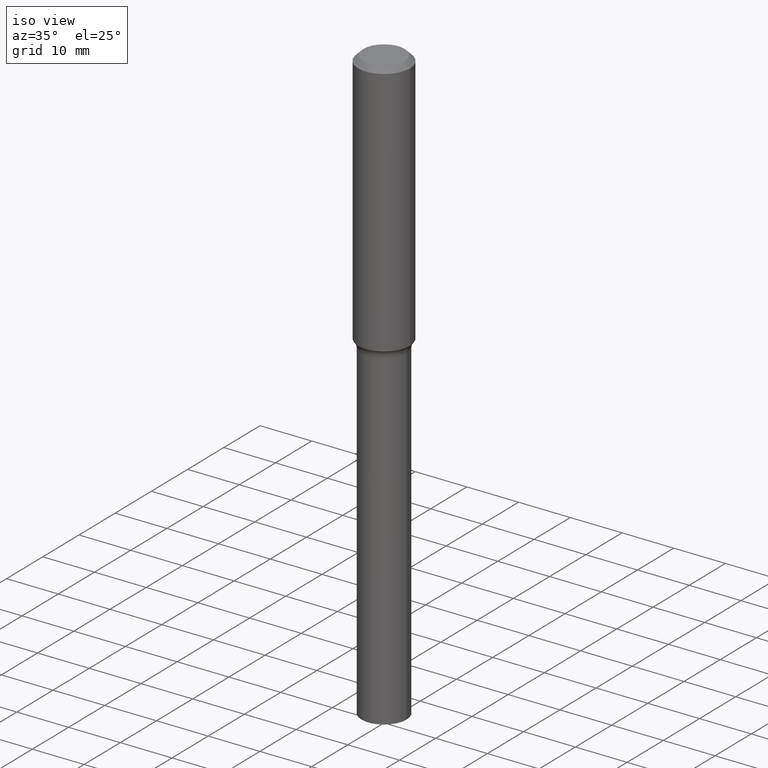
[diagram: clean part render]
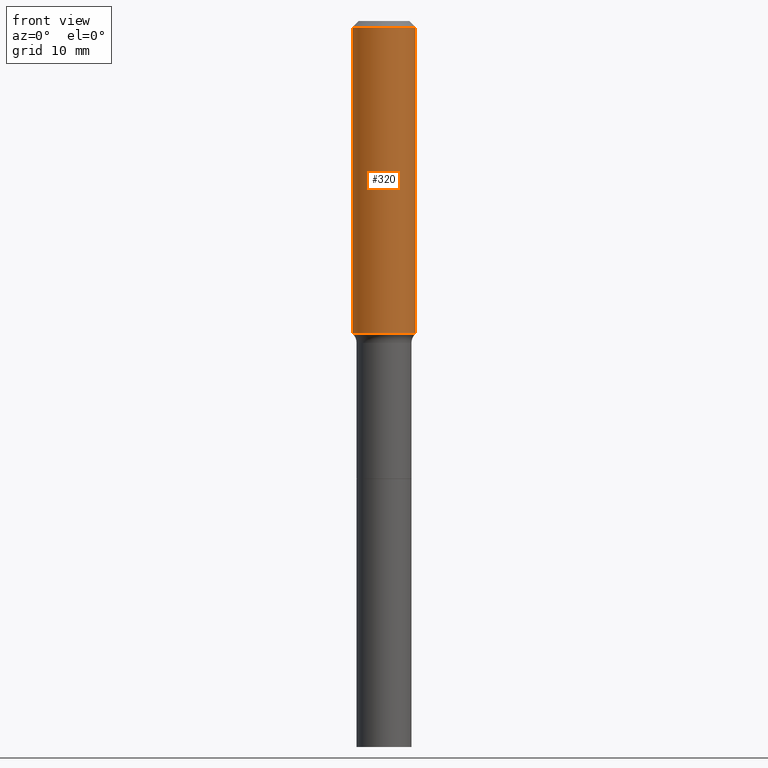
[diagram: tour spotlight — one face highlighted and labeled with its STEP entity id]
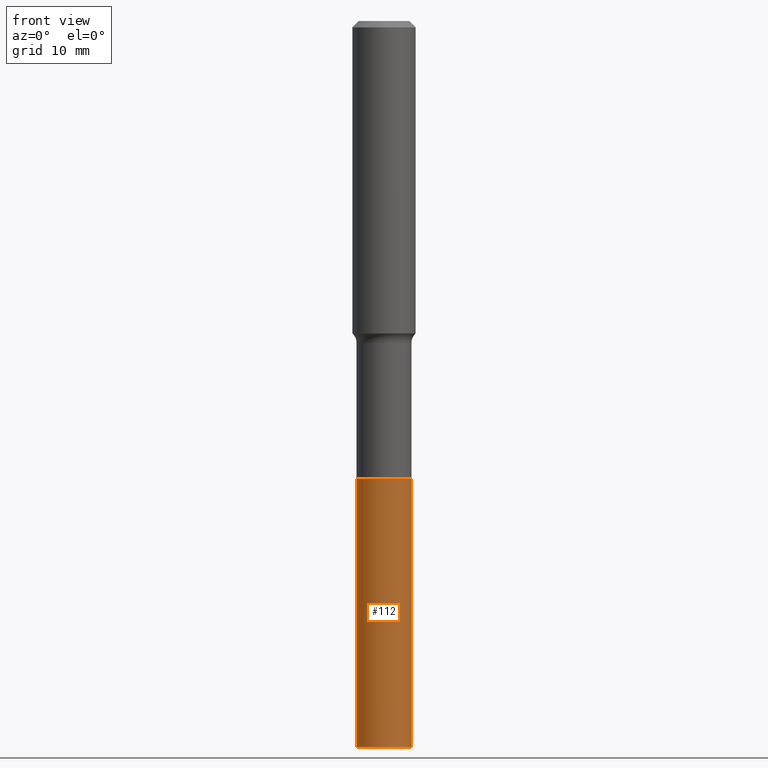
[diagram: tour spotlight — one face highlighted and labeled with its STEP entity id]
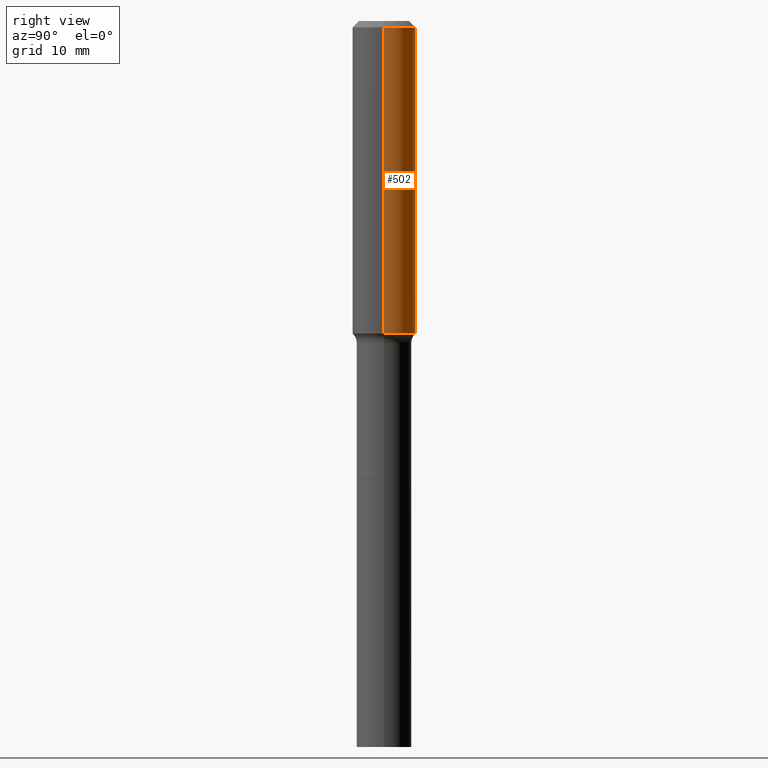
[diagram: tour spotlight — one face highlighted and labeled with its STEP entity id]
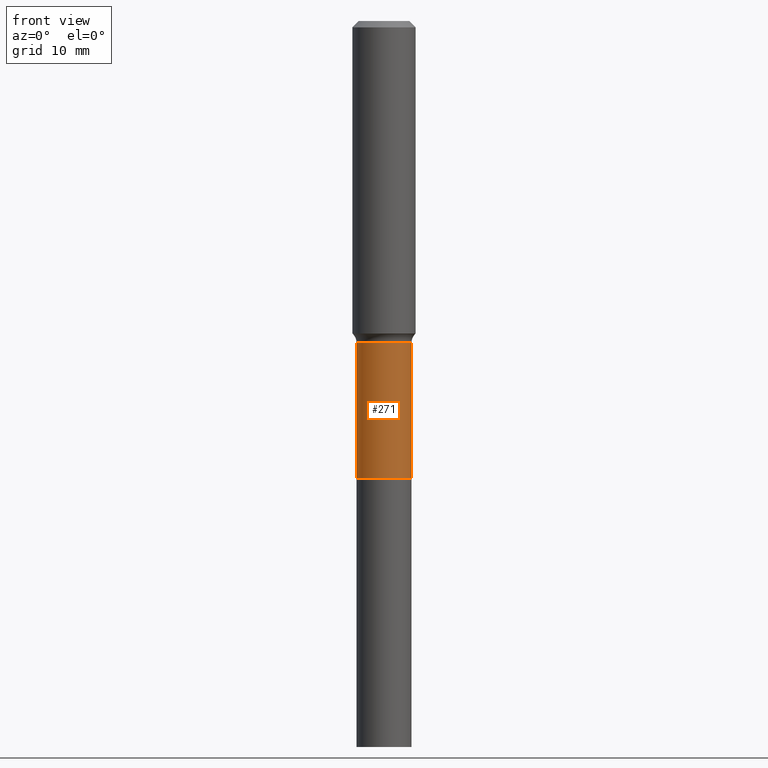
[diagram: tour spotlight — one face highlighted and labeled with its STEP entity id]
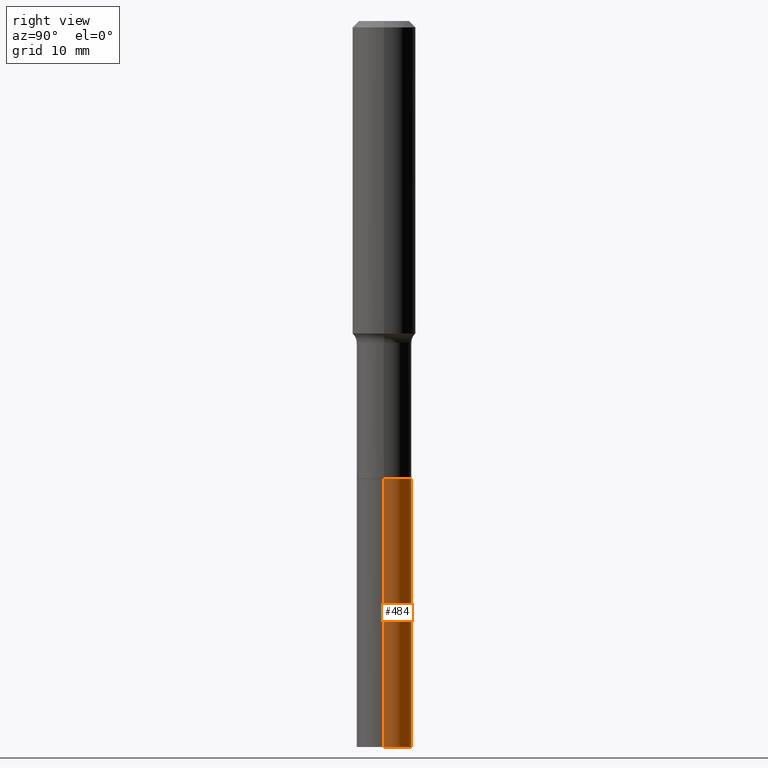
[diagram: tour spotlight — one face highlighted and labeled with its STEP entity id]
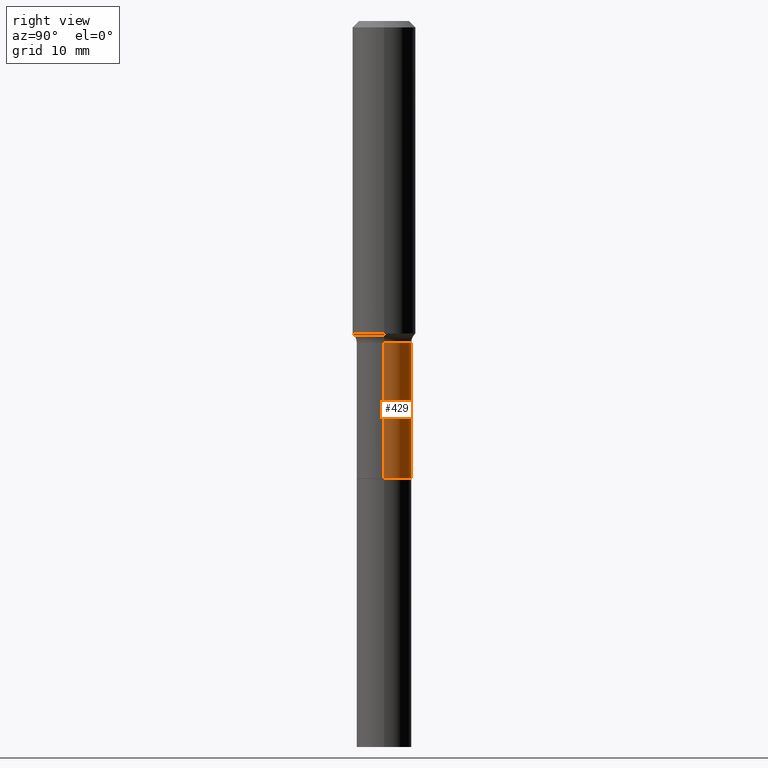
[diagram: tour spotlight — one face highlighted and labeled with its STEP entity id]
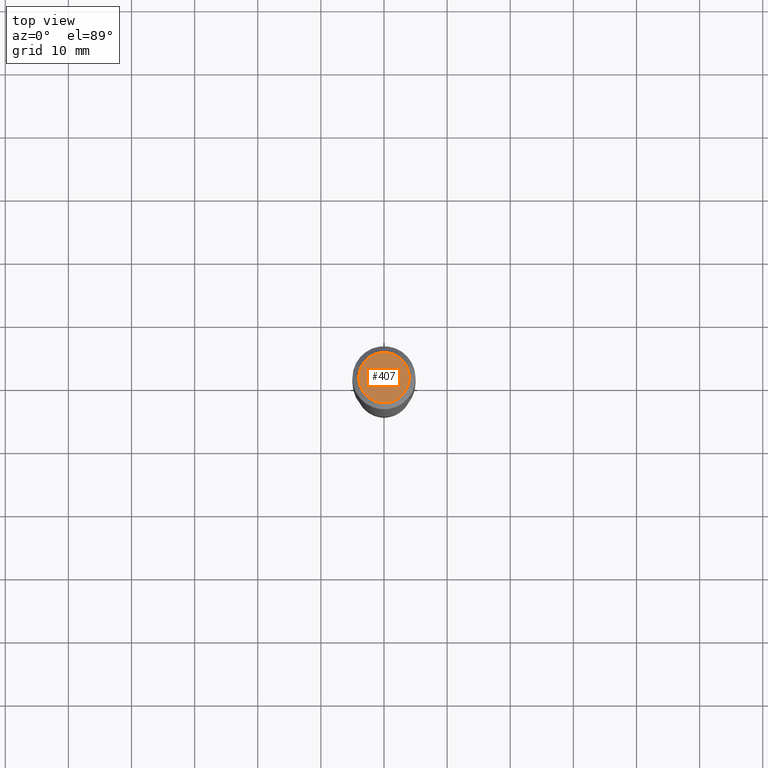
[diagram: tour spotlight — one face highlighted and labeled with its STEP entity id]
A machine part: a face-by-face anatomy tour. The part has 18 B-rep faces; the first image is the clean iso view, then the 7 largest visible faces are spotlighted one at a time (largest first), each with its STEP entity span.

Face 1 — front view, entity #320. In plain terms, the highlighted cylindrical surface (edge-blend (fillet) strip) has radius 5 mm, axis along (-0, 0, 1).
Definition (entity closure, byte-faithful):
#2 = VERTEX_POINT ( 'NONE', #33 ) ;
#13 = CYLINDRICAL_SURFACE ( 'NONE', #264, 0.1968500000000001082 ) ;
#19 = LINE ( 'NONE', #418, #84 ) ;
#23 = CARTESIAN_POINT ( 'NONE',  ( 4.765324940588792328E-29, -6.803621073189836880E-15, -1.948634522974172167 ) ) ;
#26 = VERTEX_POINT ( 'NONE', #272 ) ;
#33 = CARTESIAN_POINT ( 'NONE',  ( 0.1968500000000002470, -8.178217276292379277E-15, -1.948634522974172167 ) ) ;
#55 = CARTESIAN_POINT ( 'NONE',  ( 0.1968500000000000250, -1.512055823412797189E-15, -0.03937000000000027283 ) ) ;
#57 = EDGE_CURVE ( 'NONE', #26, #332, #333, .T. ) ;
#60 = LINE ( 'NONE', #336, #506 ) ;
#84 = VECTOR ( 'NONE', #145, 39.37007874015748143 ) ;
#90 = CARTESIAN_POINT ( 'NONE',  ( 9.627810689950950651E-31, -1.374596203102555808E-16, -0.03937000000000027283 ) ) ;
#145 = DIRECTION ( 'NONE',  ( -2.445468806185136877E-29, 3.491481338843145188E-15, 1.000000000000000000 ) ) ;
#154 = DIRECTION ( 'NONE',  ( -2.445468806185136597E-29, 3.491481338843145583E-15, 1.000000000000000000 ) ) ;
#173 = CARTESIAN_POINT ( 'NONE',  ( 0.000000000000000000, 0.000000000000000000, 0.000000000000000000 ) ) ;
#175 = DIRECTION ( 'NONE',  ( -2.445468806185136597E-29, 3.491481338843145583E-15, 1.000000000000000000 ) ) ;
#182 = CARTESIAN_POINT ( 'NONE',  ( -0.1968500000000002470, -5.404917697846077514E-15, -1.948634522974172167 ) ) ;
#220 = ORIENTED_EDGE ( 'NONE', *, *, #380, .T. ) ;
#262 = ORIENTED_EDGE ( 'NONE', *, *, #287, .F. ) ;
#264 = AXIS2_PLACEMENT_3D ( 'NONE', #173, #266, #364 ) ;
#266 = DIRECTION ( 'NONE',  ( -2.445468806185136597E-29, 3.491481338843145583E-15, 1.000000000000000000 ) ) ;
#272 = CARTESIAN_POINT ( 'NONE',  ( -0.1968500000000000250, -2.071836971406287654E-15, -0.03937000000000027283 ) ) ;
#287 = EDGE_CURVE ( 'NONE', #353, #26, #60, .T. ) ;
#320 = ADVANCED_FACE ( 'NONE', ( #511 ), #13, .T. ) ;
#321 = CIRCLE ( 'NONE', #361, 0.1968500000000002470 ) ;
#328 = DIRECTION ( 'NONE',  ( 1.000000000000000000, -6.982962677686265133E-15, 0.000000000000000000 ) ) ;
#332 = VERTEX_POINT ( 'NONE', #55 ) ;
#333 = CIRCLE ( 'NONE', #503, 0.1968500000000000250 ) ;
#336 = CARTESIAN_POINT ( 'NONE',  ( -0.1968500000000001082, 1.398703375343757985E-15, -9.682923725166787881E-30 ) ) ;
#346 = DIRECTION ( 'NONE',  ( 1.000000000000000000, -6.982962677686265922E-15, 0.000000000000000000 ) ) ;
#353 = VERTEX_POINT ( 'NONE', #182 ) ;
#360 = EDGE_CURVE ( 'NONE', #2, #332, #19, .T. ) ;
#361 = AXIS2_PLACEMENT_3D ( 'NONE', #23, #175, #328 ) ;
#364 = DIRECTION ( 'NONE',  ( 1.000000000000000000, -6.982962677686266711E-15, 4.876176775795935793E-29 ) ) ;
#368 = ORIENTED_EDGE ( 'NONE', *, *, #57, .F. ) ;
#370 = DIRECTION ( 'NONE',  ( -2.445468806185136877E-29, 3.491481338843145188E-15, 1.000000000000000000 ) ) ;
#380 = EDGE_CURVE ( 'NONE', #353, #2, #321, .T. ) ;
#418 = CARTESIAN_POINT ( 'NONE',  ( 0.1968500000000001082, -1.374596203102542397E-15, 9.598753983154305062E-30 ) ) ;
#432 = EDGE_LOOP ( 'NONE', ( #262, #220, #459, #368 ) ) ;
#459 = ORIENTED_EDGE ( 'NONE', *, *, #360, .T. ) ;
#503 = AXIS2_PLACEMENT_3D ( 'NONE', #90, #154, #346 ) ;
#506 = VECTOR ( 'NONE', #370, 39.37007874015748143 ) ;
#511 = FACE_OUTER_BOUND ( 'NONE', #432, .T. ) ;

Face 2 — front view, entity #112. In plain terms, the highlighted cylindrical surface (edge-blend (fillet) strip) has radius 4.3498 mm, axis along (-0, 0, 1).
Definition (entity closure, byte-faithful):
#31 = ORIENTED_EDGE ( 'NONE', *, *, #411, .F. ) ;
#35 = DIRECTION ( 'NONE',  ( -2.445468806185136597E-29, 3.491481338843145583E-15, 1.000000000000000000 ) ) ;
#42 = CARTESIAN_POINT ( 'NONE',  ( -0.1712500000000002909, -1.167060233481475528E-14, -4.527599999999999625 ) ) ;
#48 = VECTOR ( 'NONE', #365, 39.37007874015748143 ) ;
#64 = DIRECTION ( 'NONE',  ( 1.000000000000000000, -6.982962677686262766E-15, 0.000000000000000000 ) ) ;
#70 = EDGE_CURVE ( 'NONE', #76, #412, #476, .T. ) ;
#76 = VERTEX_POINT ( 'NONE', #42 ) ;
#77 = DIRECTION ( 'NONE',  ( -2.445468806185136597E-29, 3.491481338843145583E-15, 1.000000000000000000 ) ) ;
#107 = DIRECTION ( 'NONE',  ( -2.445468806185136597E-29, 3.491481338843145583E-15, 1.000000000000000000 ) ) ;
#112 = ADVANCED_FACE ( 'NONE', ( #469 ), #479, .T. ) ;
#121 = EDGE_CURVE ( 'NONE', #223, #422, #367, .T. ) ;
#122 = CARTESIAN_POINT ( 'NONE',  ( -0.1712500000000001521, -8.749978194872468576E-15, -2.854599999999999582 ) ) ;
#140 = EDGE_LOOP ( 'NONE', ( #470, #269, #335, #31 ) ) ;
#142 = CARTESIAN_POINT ( 'NONE',  ( 6.980835254136090608E-29, -9.966782629861641028E-15, -2.854599999999999582 ) ) ;
#161 = CARTESIAN_POINT ( 'NONE',  ( 0.1712500000000000133, -1.116261498841541436E-14, -2.854599999999999582 ) ) ;
#184 = VECTOR ( 'NONE', #447, 39.37007874015748143 ) ;
#185 = AXIS2_PLACEMENT_3D ( 'NONE', #516, #35, #387 ) ;
#198 = CIRCLE ( 'NONE', #185, 0.1712500000000002909 ) ;
#209 = EDGE_CURVE ( 'NONE', #76, #223, #198, .T. ) ;
#217 = CIRCLE ( 'NONE', #495, 0.1712500000000000133 ) ;
#223 = VERTEX_POINT ( 'NONE', #475 ) ;
#239 = DIRECTION ( 'NONE',  ( 1.000000000000000000, -6.982962677686268288E-15, 0.000000000000000000 ) ) ;
#269 = ORIENTED_EDGE ( 'NONE', *, *, #209, .T. ) ;
#297 = AXIS2_PLACEMENT_3D ( 'NONE', #512, #77, #239 ) ;
#307 = CARTESIAN_POINT ( 'NONE',  ( -0.1712500000000000133, -1.167060233481475843E-14, -2.854599999999999582 ) ) ;
#335 = ORIENTED_EDGE ( 'NONE', *, *, #121, .T. ) ;
#365 = DIRECTION ( 'NONE',  ( -2.445468806185136877E-29, 3.491481338843145188E-15, 1.000000000000000000 ) ) ;
#367 = LINE ( 'NONE', #465, #48 ) ;
#387 = DIRECTION ( 'NONE',  ( 1.000000000000000000, -6.982962677686262766E-15, 0.000000000000000000 ) ) ;
#411 = EDGE_CURVE ( 'NONE', #412, #422, #217, .T. ) ;
#412 = VERTEX_POINT ( 'NONE', #307 ) ;
#422 = VERTEX_POINT ( 'NONE', #161 ) ;
#447 = DIRECTION ( 'NONE',  ( -2.445468806185136877E-29, 3.491481338843145188E-15, 1.000000000000000000 ) ) ;
#465 = CARTESIAN_POINT ( 'NONE',  ( 0.1712500000000001521, -1.116261498841541594E-14, -2.854599999999999582 ) ) ;
#469 = FACE_OUTER_BOUND ( 'NONE', #140, .T. ) ;
#470 = ORIENTED_EDGE ( 'NONE', *, *, #70, .F. ) ;
#475 = CARTESIAN_POINT ( 'NONE',  ( 0.1712500000000002909, -1.700386326829999880E-14, -4.527599999999999625 ) ) ;
#476 = LINE ( 'NONE', #122, #184 ) ;
#479 = CYLINDRICAL_SURFACE ( 'NONE', #297, 0.1712500000000001521 ) ;
#495 = AXIS2_PLACEMENT_3D ( 'NONE', #142, #107, #64 ) ;
#512 = CARTESIAN_POINT ( 'NONE',  ( 6.980835254136090608E-29, -9.966782629861641028E-15, -2.854599999999999582 ) ) ;
#516 = CARTESIAN_POINT ( 'NONE',  ( 1.107210456688382298E-28, -1.580803090974622389E-14, -4.527599999999999625 ) ) ;

Face 3 — right view, entity #502. In plain terms, the highlighted cylindrical surface (edge-blend (fillet) strip) has radius 5 mm, axis along (-0, 0, 1).
Definition (entity closure, byte-faithful):
#2 = VERTEX_POINT ( 'NONE', #33 ) ;
#12 = EDGE_CURVE ( 'NONE', #2, #353, #268, .T. ) ;
#16 = EDGE_CURVE ( 'NONE', #332, #26, #285, .T. ) ;
#19 = LINE ( 'NONE', #418, #84 ) ;
#26 = VERTEX_POINT ( 'NONE', #272 ) ;
#33 = CARTESIAN_POINT ( 'NONE',  ( 0.1968500000000002470, -8.178217276292379277E-15, -1.948634522974172167 ) ) ;
#41 = CYLINDRICAL_SURFACE ( 'NONE', #45, 0.1968500000000001082 ) ;
#45 = AXIS2_PLACEMENT_3D ( 'NONE', #236, #155, #232 ) ;
#55 = CARTESIAN_POINT ( 'NONE',  ( 0.1968500000000000250, -1.512055823412797189E-15, -0.03937000000000027283 ) ) ;
#60 = LINE ( 'NONE', #336, #506 ) ;
#69 = FACE_OUTER_BOUND ( 'NONE', #230, .T. ) ;
#84 = VECTOR ( 'NONE', #145, 39.37007874015748143 ) ;
#109 = ORIENTED_EDGE ( 'NONE', *, *, #360, .F. ) ;
#145 = DIRECTION ( 'NONE',  ( -2.445468806185136877E-29, 3.491481338843145188E-15, 1.000000000000000000 ) ) ;
#155 = DIRECTION ( 'NONE',  ( -2.445468806185136597E-29, 3.491481338843145583E-15, 1.000000000000000000 ) ) ;
#182 = CARTESIAN_POINT ( 'NONE',  ( -0.1968500000000002470, -5.404917697846077514E-15, -1.948634522974172167 ) ) ;
#199 = DIRECTION ( 'NONE',  ( 1.000000000000000000, -6.982962677686265133E-15, 0.000000000000000000 ) ) ;
#225 = ORIENTED_EDGE ( 'NONE', *, *, #16, .F. ) ;
#228 = AXIS2_PLACEMENT_3D ( 'NONE', #310, #355, #277 ) ;
#230 = EDGE_LOOP ( 'NONE', ( #402, #389, #225, #109 ) ) ;
#232 = DIRECTION ( 'NONE',  ( 1.000000000000000000, -6.982962677686266711E-15, 4.876176775795935793E-29 ) ) ;
#236 = CARTESIAN_POINT ( 'NONE',  ( 0.000000000000000000, 0.000000000000000000, 0.000000000000000000 ) ) ;
#268 = CIRCLE ( 'NONE', #491, 0.1968500000000002470 ) ;
#272 = CARTESIAN_POINT ( 'NONE',  ( -0.1968500000000000250, -2.071836971406287654E-15, -0.03937000000000027283 ) ) ;
#277 = DIRECTION ( 'NONE',  ( 1.000000000000000000, -6.982962677686265922E-15, 0.000000000000000000 ) ) ;
#285 = CIRCLE ( 'NONE', #228, 0.1968500000000000250 ) ;
#287 = EDGE_CURVE ( 'NONE', #353, #26, #60, .T. ) ;
#310 = CARTESIAN_POINT ( 'NONE',  ( 9.627810689950950651E-31, -1.374596203102555808E-16, -0.03937000000000027283 ) ) ;
#317 = CARTESIAN_POINT ( 'NONE',  ( 4.765324940588792328E-29, -6.803621073189836880E-15, -1.948634522974172167 ) ) ;
#332 = VERTEX_POINT ( 'NONE', #55 ) ;
#336 = CARTESIAN_POINT ( 'NONE',  ( -0.1968500000000001082, 1.398703375343757985E-15, -9.682923725166787881E-30 ) ) ;
#353 = VERTEX_POINT ( 'NONE', #182 ) ;
#355 = DIRECTION ( 'NONE',  ( -2.445468806185136597E-29, 3.491481338843145583E-15, 1.000000000000000000 ) ) ;
#360 = EDGE_CURVE ( 'NONE', #2, #332, #19, .T. ) ;
#370 = DIRECTION ( 'NONE',  ( -2.445468806185136877E-29, 3.491481338843145188E-15, 1.000000000000000000 ) ) ;
#389 = ORIENTED_EDGE ( 'NONE', *, *, #287, .T. ) ;
#402 = ORIENTED_EDGE ( 'NONE', *, *, #12, .T. ) ;
#418 = CARTESIAN_POINT ( 'NONE',  ( 0.1968500000000001082, -1.374596203102542397E-15, 9.598753983154305062E-30 ) ) ;
#487 = DIRECTION ( 'NONE',  ( -2.445468806185136597E-29, 3.491481338843145583E-15, 1.000000000000000000 ) ) ;
#491 = AXIS2_PLACEMENT_3D ( 'NONE', #317, #487, #199 ) ;
#502 = ADVANCED_FACE ( 'NONE', ( #69 ), #41, .T. ) ;
#506 = VECTOR ( 'NONE', #370, 39.37007874015748143 ) ;

Face 4 — front view, entity #271. In plain terms, the highlighted cylindrical surface (edge-blend (fillet) strip) has radius 4.3497 mm, axis along (-0, 0, 1).
Definition (entity closure, byte-faithful):
#4 = CARTESIAN_POINT ( 'NONE',  ( 0.1712500000000000133, -1.116086924774599207E-14, -2.854099999999999415 ) ) ;
#20 = AXIS2_PLACEMENT_3D ( 'NONE', #486, #128, #281 ) ;
#32 = CARTESIAN_POINT ( 'NONE',  ( 4.909523175297278955E-29, -7.009497935861498019E-15, -2.007599999999999607 ) ) ;
#52 = VECTOR ( 'NONE', #257, 39.37007874015748143 ) ;
#65 = VERTEX_POINT ( 'NONE', #158 ) ;
#82 = LINE ( 'NONE', #150, #253 ) ;
#114 = DIRECTION ( 'NONE',  ( 1.000000000000000000, -6.982962677686262766E-15, 0.000000000000000000 ) ) ;
#116 = VERTEX_POINT ( 'NONE', #352 ) ;
#128 = DIRECTION ( 'NONE',  ( -2.445468806185136597E-29, 3.491481338843145583E-15, 1.000000000000000000 ) ) ;
#136 = EDGE_CURVE ( 'NONE', #65, #116, #82, .T. ) ;
#146 = CIRCLE ( 'NONE', #159, 0.1712500000000000133 ) ;
#150 = CARTESIAN_POINT ( 'NONE',  ( -0.1712499999999999856, 1.216804434989171466E-15, -8.423676342061525262E-30 ) ) ;
#151 = ORIENTED_EDGE ( 'NONE', *, *, #327, .T. ) ;
#158 = CARTESIAN_POINT ( 'NONE',  ( -0.1712500000000000133, -7.270462977537686320E-15, -2.854099999999999415 ) ) ;
#159 = AXIS2_PLACEMENT_3D ( 'NONE', #192, #396, #114 ) ;
#162 = DIRECTION ( 'NONE',  ( 1.000000000000000000, -6.982962677686266711E-15, 0.000000000000000000 ) ) ;
#192 = CARTESIAN_POINT ( 'NONE',  ( 6.979612519732997807E-29, -9.965036889192218735E-15, -2.854099999999999415 ) ) ;
#197 = DIRECTION ( 'NONE',  ( -2.445468806185136877E-29, 3.491481338843145188E-15, 1.000000000000000000 ) ) ;
#208 = VERTEX_POINT ( 'NONE', #4 ) ;
#215 = EDGE_CURVE ( 'NONE', #116, #298, #493, .T. ) ;
#231 = CARTESIAN_POINT ( 'NONE',  ( 0.1712499999999999023, -8.205330294415270563E-15, -2.007599999999999607 ) ) ;
#253 = VECTOR ( 'NONE', #197, 39.37007874015748143 ) ;
#257 = DIRECTION ( 'NONE',  ( -2.445468806185136877E-29, 3.491481338843145188E-15, 1.000000000000000000 ) ) ;
#271 = ADVANCED_FACE ( 'NONE', ( #442 ), #318, .T. ) ;
#274 = ORIENTED_EDGE ( 'NONE', *, *, #490, .T. ) ;
#281 = DIRECTION ( 'NONE',  ( 1.000000000000000000, -6.982962677686266711E-15, 4.876176775795935793E-29 ) ) ;
#298 = VERTEX_POINT ( 'NONE', #231 ) ;
#309 = DIRECTION ( 'NONE',  ( -2.445468806185136597E-29, 3.491481338843145583E-15, 1.000000000000000000 ) ) ;
#318 = CYLINDRICAL_SURFACE ( 'NONE', #20, 0.1712499999999999856 ) ;
#327 = EDGE_CURVE ( 'NONE', #208, #298, #454, .T. ) ;
#352 = CARTESIAN_POINT ( 'NONE',  ( -0.1712499999999999023, -7.270462977537686320E-15, -2.007599999999999607 ) ) ;
#382 = EDGE_LOOP ( 'NONE', ( #489, #274, #151, #439 ) ) ;
#396 = DIRECTION ( 'NONE',  ( -2.445468806185136597E-29, 3.491481338843145583E-15, 1.000000000000000000 ) ) ;
#439 = ORIENTED_EDGE ( 'NONE', *, *, #215, .F. ) ;
#442 = FACE_OUTER_BOUND ( 'NONE', #382, .T. ) ;
#454 = LINE ( 'NONE', #457, #52 ) ;
#457 = CARTESIAN_POINT ( 'NONE',  ( 0.1712499999999999856, -1.195832358553773135E-15, 8.350452728550539064E-30 ) ) ;
#483 = AXIS2_PLACEMENT_3D ( 'NONE', #32, #309, #162 ) ;
#486 = CARTESIAN_POINT ( 'NONE',  ( 0.000000000000000000, 0.000000000000000000, 0.000000000000000000 ) ) ;
#489 = ORIENTED_EDGE ( 'NONE', *, *, #136, .F. ) ;
#490 = EDGE_CURVE ( 'NONE', #65, #208, #146, .T. ) ;
#493 = CIRCLE ( 'NONE', #483, 0.1712499999999999023 ) ;

Face 5 — right view, entity #484. In plain terms, the highlighted cylindrical surface (edge-blend (fillet) strip) has radius 4.3498 mm, axis along (-0, 0, 1).
Definition (entity closure, byte-faithful):
#42 = CARTESIAN_POINT ( 'NONE',  ( -0.1712500000000002909, -1.167060233481475528E-14, -4.527599999999999625 ) ) ;
#48 = VECTOR ( 'NONE', #365, 39.37007874015748143 ) ;
#62 = EDGE_LOOP ( 'NONE', ( #326, #473, #374, #404 ) ) ;
#67 = AXIS2_PLACEMENT_3D ( 'NONE', #312, #480, #316 ) ;
#70 = EDGE_CURVE ( 'NONE', #76, #412, #476, .T. ) ;
#76 = VERTEX_POINT ( 'NONE', #42 ) ;
#96 = CIRCLE ( 'NONE', #67, 0.1712500000000002909 ) ;
#121 = EDGE_CURVE ( 'NONE', #223, #422, #367, .T. ) ;
#122 = CARTESIAN_POINT ( 'NONE',  ( -0.1712500000000001521, -8.749978194872468576E-15, -2.854599999999999582 ) ) ;
#149 = DIRECTION ( 'NONE',  ( -2.445468806185136597E-29, 3.491481338843145583E-15, 1.000000000000000000 ) ) ;
#161 = CARTESIAN_POINT ( 'NONE',  ( 0.1712500000000000133, -1.116261498841541436E-14, -2.854599999999999582 ) ) ;
#184 = VECTOR ( 'NONE', #447, 39.37007874015748143 ) ;
#223 = VERTEX_POINT ( 'NONE', #475 ) ;
#224 = EDGE_CURVE ( 'NONE', #223, #76, #96, .T. ) ;
#233 = CIRCLE ( 'NONE', #241, 0.1712500000000000133 ) ;
#241 = AXIS2_PLACEMENT_3D ( 'NONE', #376, #149, #379 ) ;
#273 = CYLINDRICAL_SURFACE ( 'NONE', #497, 0.1712500000000001521 ) ;
#275 = DIRECTION ( 'NONE',  ( -2.445468806185136597E-29, 3.491481338843145583E-15, 1.000000000000000000 ) ) ;
#307 = CARTESIAN_POINT ( 'NONE',  ( -0.1712500000000000133, -1.167060233481475843E-14, -2.854599999999999582 ) ) ;
#312 = CARTESIAN_POINT ( 'NONE',  ( 1.107210456688382298E-28, -1.580803090974622389E-14, -4.527599999999999625 ) ) ;
#316 = DIRECTION ( 'NONE',  ( 1.000000000000000000, -6.982962677686262766E-15, 0.000000000000000000 ) ) ;
#322 = EDGE_CURVE ( 'NONE', #422, #412, #233, .T. ) ;
#326 = ORIENTED_EDGE ( 'NONE', *, *, #224, .T. ) ;
#347 = FACE_OUTER_BOUND ( 'NONE', #62, .T. ) ;
#365 = DIRECTION ( 'NONE',  ( -2.445468806185136877E-29, 3.491481338843145188E-15, 1.000000000000000000 ) ) ;
#367 = LINE ( 'NONE', #465, #48 ) ;
#374 = ORIENTED_EDGE ( 'NONE', *, *, #322, .F. ) ;
#376 = CARTESIAN_POINT ( 'NONE',  ( 6.980835254136090608E-29, -9.966782629861641028E-15, -2.854599999999999582 ) ) ;
#379 = DIRECTION ( 'NONE',  ( 1.000000000000000000, -6.982962677686262766E-15, 0.000000000000000000 ) ) ;
#404 = ORIENTED_EDGE ( 'NONE', *, *, #121, .F. ) ;
#412 = VERTEX_POINT ( 'NONE', #307 ) ;
#422 = VERTEX_POINT ( 'NONE', #161 ) ;
#436 = DIRECTION ( 'NONE',  ( 1.000000000000000000, -6.982962677686268288E-15, 0.000000000000000000 ) ) ;
#447 = DIRECTION ( 'NONE',  ( -2.445468806185136877E-29, 3.491481338843145188E-15, 1.000000000000000000 ) ) ;
#465 = CARTESIAN_POINT ( 'NONE',  ( 0.1712500000000001521, -1.116261498841541594E-14, -2.854599999999999582 ) ) ;
#473 = ORIENTED_EDGE ( 'NONE', *, *, #70, .T. ) ;
#475 = CARTESIAN_POINT ( 'NONE',  ( 0.1712500000000002909, -1.700386326829999880E-14, -4.527599999999999625 ) ) ;
#476 = LINE ( 'NONE', #122, #184 ) ;
#480 = DIRECTION ( 'NONE',  ( -2.445468806185136597E-29, 3.491481338843145583E-15, 1.000000000000000000 ) ) ;
#484 = ADVANCED_FACE ( 'NONE', ( #347 ), #273, .T. ) ;
#497 = AXIS2_PLACEMENT_3D ( 'NONE', #515, #275, #436 ) ;
#515 = CARTESIAN_POINT ( 'NONE',  ( 6.980835254136090608E-29, -9.966782629861641028E-15, -2.854599999999999582 ) ) ;

Face 6 — right view, entity #429. In plain terms, the highlighted cylindrical surface (edge-blend (fillet) strip) has radius 4.3497 mm, axis along (-0, 0, 1).
Definition (entity closure, byte-faithful):
#4 = CARTESIAN_POINT ( 'NONE',  ( 0.1712500000000000133, -1.116086924774599207E-14, -2.854099999999999415 ) ) ;
#36 = DIRECTION ( 'NONE',  ( -2.445468806185136597E-29, 3.491481338843145583E-15, 1.000000000000000000 ) ) ;
#38 = EDGE_CURVE ( 'NONE', #208, #65, #391, .T. ) ;
#52 = VECTOR ( 'NONE', #257, 39.37007874015748143 ) ;
#65 = VERTEX_POINT ( 'NONE', #158 ) ;
#82 = LINE ( 'NONE', #150, #253 ) ;
#88 = DIRECTION ( 'NONE',  ( 1.000000000000000000, -6.982962677686262766E-15, 0.000000000000000000 ) ) ;
#111 = ORIENTED_EDGE ( 'NONE', *, *, #327, .F. ) ;
#116 = VERTEX_POINT ( 'NONE', #352 ) ;
#118 = ORIENTED_EDGE ( 'NONE', *, *, #514, .F. ) ;
#120 = DIRECTION ( 'NONE',  ( 1.000000000000000000, -6.982962677686266711E-15, 4.876176775795935793E-29 ) ) ;
#136 = EDGE_CURVE ( 'NONE', #65, #116, #82, .T. ) ;
#150 = CARTESIAN_POINT ( 'NONE',  ( -0.1712499999999999856, 1.216804434989171466E-15, -8.423676342061525262E-30 ) ) ;
#158 = CARTESIAN_POINT ( 'NONE',  ( -0.1712500000000000133, -7.270462977537686320E-15, -2.854099999999999415 ) ) ;
#189 = AXIS2_PLACEMENT_3D ( 'NONE', #341, #510, #386 ) ;
#197 = DIRECTION ( 'NONE',  ( -2.445468806185136877E-29, 3.491481338843145188E-15, 1.000000000000000000 ) ) ;
#205 = CARTESIAN_POINT ( 'NONE',  ( 0.000000000000000000, 0.000000000000000000, 0.000000000000000000 ) ) ;
#208 = VERTEX_POINT ( 'NONE', #4 ) ;
#231 = CARTESIAN_POINT ( 'NONE',  ( 0.1712499999999999023, -8.205330294415270563E-15, -2.007599999999999607 ) ) ;
#253 = VECTOR ( 'NONE', #197, 39.37007874015748143 ) ;
#257 = DIRECTION ( 'NONE',  ( -2.445468806185136877E-29, 3.491481338843145188E-15, 1.000000000000000000 ) ) ;
#278 = CIRCLE ( 'NONE', #189, 0.1712499999999999023 ) ;
#298 = VERTEX_POINT ( 'NONE', #231 ) ;
#314 = DIRECTION ( 'NONE',  ( -2.445468806185136597E-29, 3.491481338843145583E-15, 1.000000000000000000 ) ) ;
#327 = EDGE_CURVE ( 'NONE', #208, #298, #454, .T. ) ;
#340 = EDGE_LOOP ( 'NONE', ( #466, #513, #118, #111 ) ) ;
#341 = CARTESIAN_POINT ( 'NONE',  ( 4.909523175297278955E-29, -7.009497935861498019E-15, -2.007599999999999607 ) ) ;
#344 = FACE_OUTER_BOUND ( 'NONE', #340, .T. ) ;
#352 = CARTESIAN_POINT ( 'NONE',  ( -0.1712499999999999023, -7.270462977537686320E-15, -2.007599999999999607 ) ) ;
#386 = DIRECTION ( 'NONE',  ( 1.000000000000000000, -6.982962677686266711E-15, 0.000000000000000000 ) ) ;
#390 = CYLINDRICAL_SURFACE ( 'NONE', #444, 0.1712499999999999856 ) ;
#391 = CIRCLE ( 'NONE', #458, 0.1712500000000000133 ) ;
#393 = CARTESIAN_POINT ( 'NONE',  ( 6.979612519732997807E-29, -9.965036889192218735E-15, -2.854099999999999415 ) ) ;
#429 = ADVANCED_FACE ( 'NONE', ( #344 ), #390, .T. ) ;
#444 = AXIS2_PLACEMENT_3D ( 'NONE', #205, #314, #120 ) ;
#454 = LINE ( 'NONE', #457, #52 ) ;
#457 = CARTESIAN_POINT ( 'NONE',  ( 0.1712499999999999856, -1.195832358553773135E-15, 8.350452728550539064E-30 ) ) ;
#458 = AXIS2_PLACEMENT_3D ( 'NONE', #393, #36, #88 ) ;
#466 = ORIENTED_EDGE ( 'NONE', *, *, #38, .T. ) ;
#510 = DIRECTION ( 'NONE',  ( -2.445468806185136597E-29, 3.491481338843145583E-15, 1.000000000000000000 ) ) ;
#513 = ORIENTED_EDGE ( 'NONE', *, *, #136, .T. ) ;
#514 = EDGE_CURVE ( 'NONE', #298, #116, #278, .T. ) ;

Face 7 — top view, entity #407. In plain terms, the highlighted planar face has unit normal (0, -0, -1).
Definition (entity closure, byte-faithful):
#24 = EDGE_LOOP ( 'NONE', ( #350, #378 ) ) ;
#28 = AXIS2_PLACEMENT_3D ( 'NONE', #301, #292, #456 ) ;
#104 = FACE_OUTER_BOUND ( 'NONE', #24, .T. ) ;
#133 = AXIS2_PLACEMENT_3D ( 'NONE', #397, #472, #392 ) ;
#137 = AXIS2_PLACEMENT_3D ( 'NONE', #179, #414, #331 ) ;
#179 = CARTESIAN_POINT ( 'NONE',  ( -4.713871149261283817E-47, 6.730158695841841775E-33, 1.927594061857935365E-18 ) ) ;
#183 = EDGE_CURVE ( 'NONE', #291, #398, #460, .T. ) ;
#259 = PLANE ( 'NONE',  #137 ) ;
#284 = EDGE_CURVE ( 'NONE', #398, #291, #349, .T. ) ;
#291 = VERTEX_POINT ( 'NONE', #375 ) ;
#292 = DIRECTION ( 'NONE',  ( -2.445468806185136597E-29, 3.491481338843145583E-15, 1.000000000000000000 ) ) ;
#293 = CARTESIAN_POINT ( 'NONE',  ( -0.1574800000000000089, 1.168406772637159618E-15, 3.855188123707939751E-18 ) ) ;
#301 = CARTESIAN_POINT ( 'NONE',  ( -9.427742298522567634E-47, 1.346031739168368355E-32, 3.855188123715870730E-18 ) ) ;
#331 = DIRECTION ( 'NONE',  ( -1.000000000000000000, 6.982962677686265922E-15, -4.876176775795935793E-29 ) ) ;
#349 = CIRCLE ( 'NONE', #28, 0.1574800000000000089 ) ;
#350 = ORIENTED_EDGE ( 'NONE', *, *, #284, .T. ) ;
#375 = CARTESIAN_POINT ( 'NONE',  ( 0.1574800000000000089, -1.284169937930321189E-15, 3.855188123724205385E-18 ) ) ;
#378 = ORIENTED_EDGE ( 'NONE', *, *, #183, .T. ) ;
#392 = DIRECTION ( 'NONE',  ( 1.000000000000000000, -6.982962677686265922E-15, 4.876223630392693006E-29 ) ) ;
#397 = CARTESIAN_POINT ( 'NONE',  ( -9.427742298522567634E-47, 1.346031739168368355E-32, 3.855188123715870730E-18 ) ) ;
#398 = VERTEX_POINT ( 'NONE', #293 ) ;
#407 = ADVANCED_FACE ( 'NONE', ( #104 ), #259, .F. ) ;
#414 = DIRECTION ( 'NONE',  ( 2.438088387897960049E-29, -3.491481338843145188E-15, -1.000000000000000000 ) ) ;
#456 = DIRECTION ( 'NONE',  ( 1.000000000000000000, -6.982962677686265922E-15, 4.876223630392693006E-29 ) ) ;
#460 = CIRCLE ( 'NONE', #133, 0.1574800000000000089 ) ;
#472 = DIRECTION ( 'NONE',  ( -2.445468806185136597E-29, 3.491481338843145583E-15, 1.000000000000000000 ) ) ;